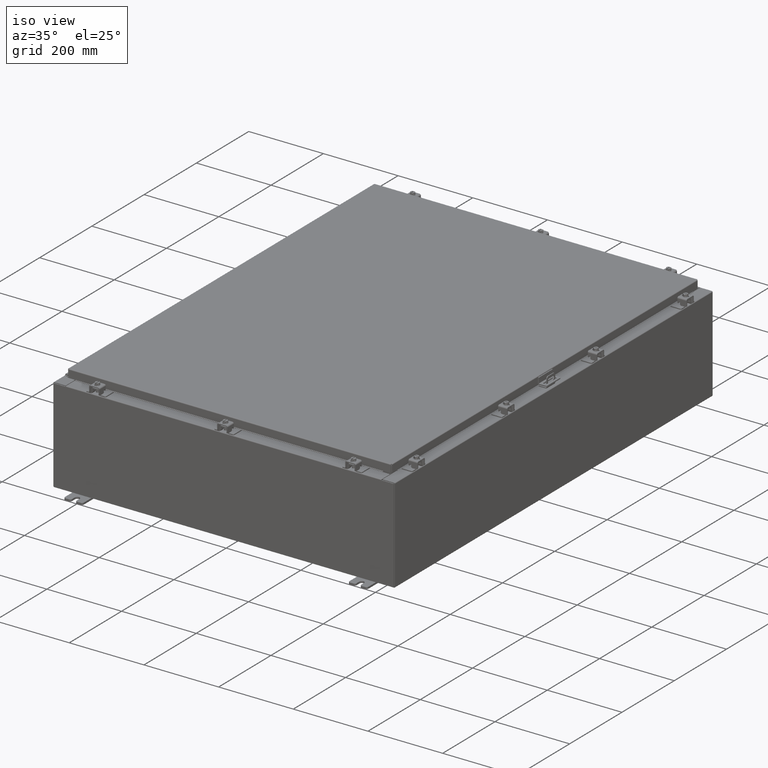
[diagram: clean part render]
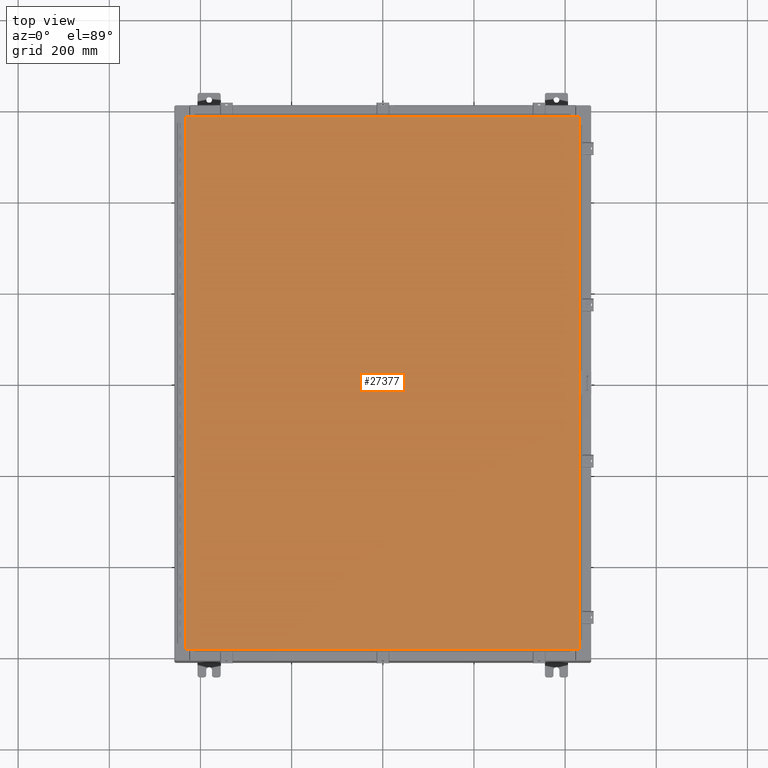
[diagram: tour spotlight — one face highlighted and labeled with its STEP entity id]
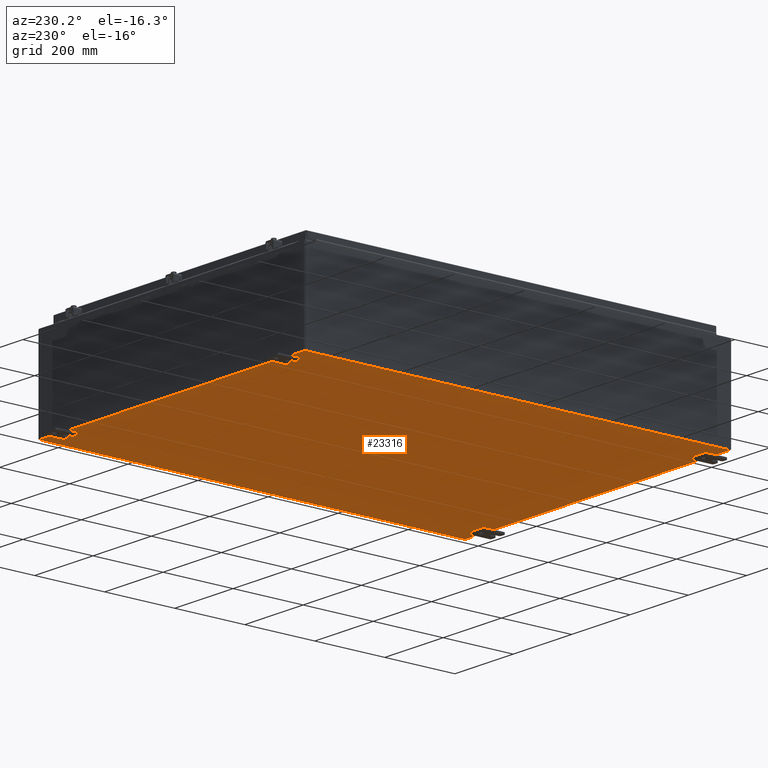
[diagram: tour spotlight — one face highlighted and labeled with its STEP entity id]
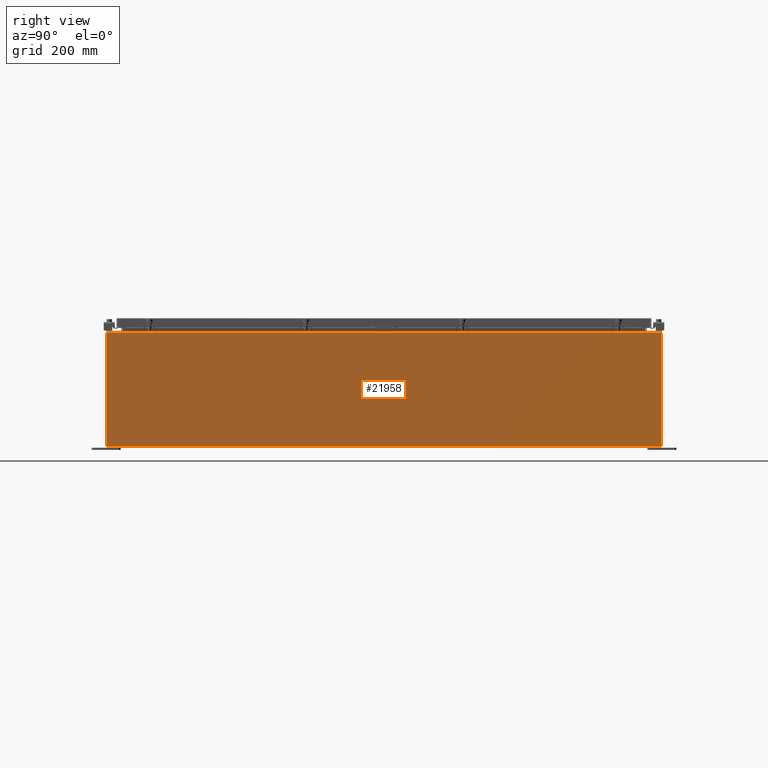
[diagram: tour spotlight — one face highlighted and labeled with its STEP entity id]
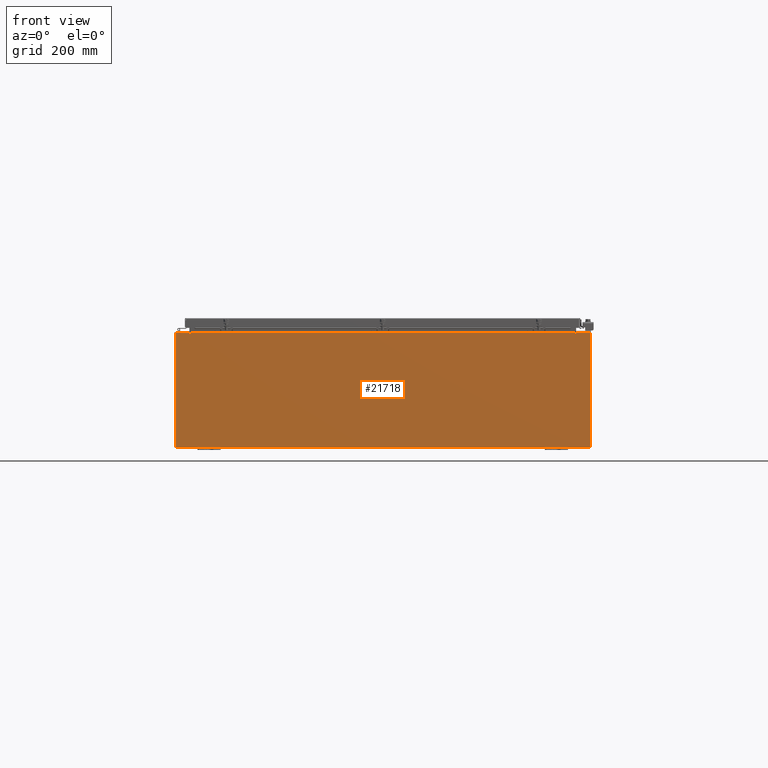
[diagram: tour spotlight — one face highlighted and labeled with its STEP entity id]
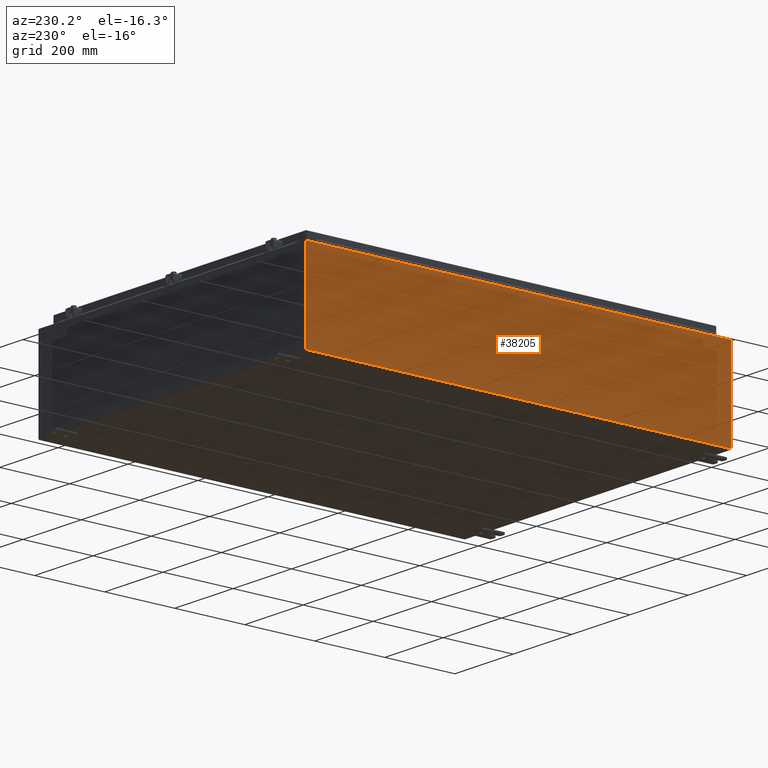
[diagram: tour spotlight — one face highlighted and labeled with its STEP entity id]
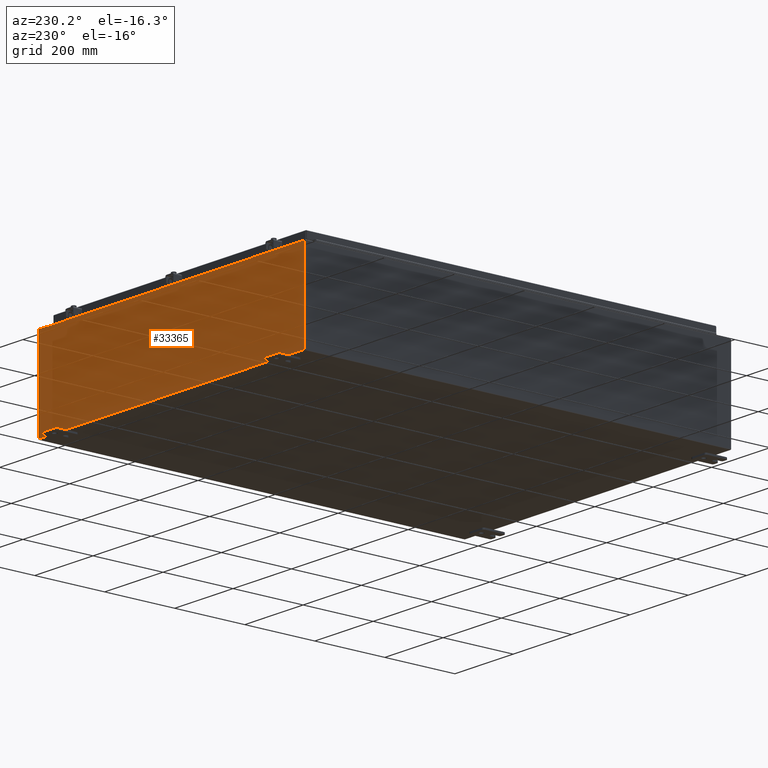
[diagram: tour spotlight — one face highlighted and labeled with its STEP entity id]
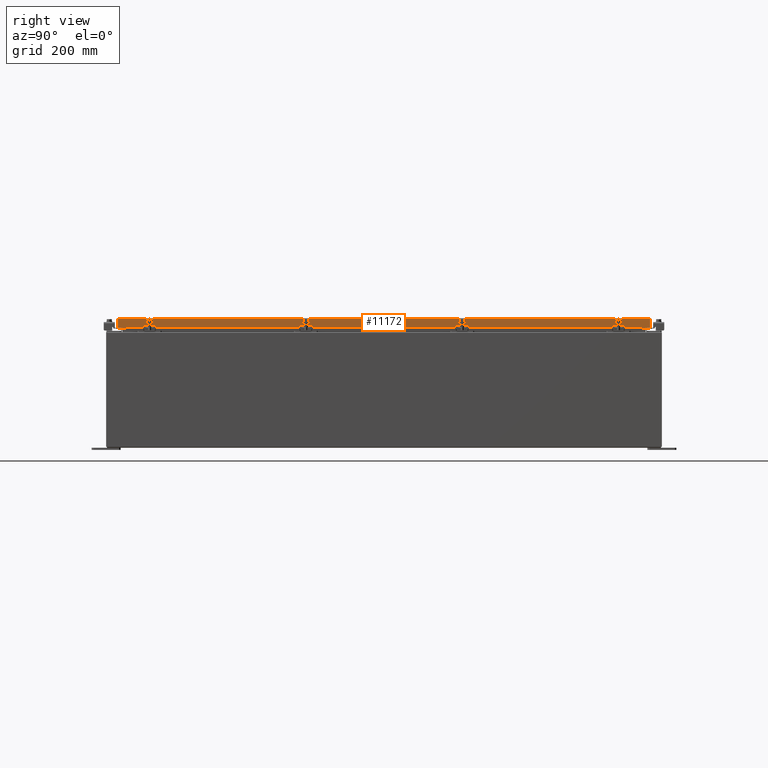
[diagram: tour spotlight — one face highlighted and labeled with its STEP entity id]
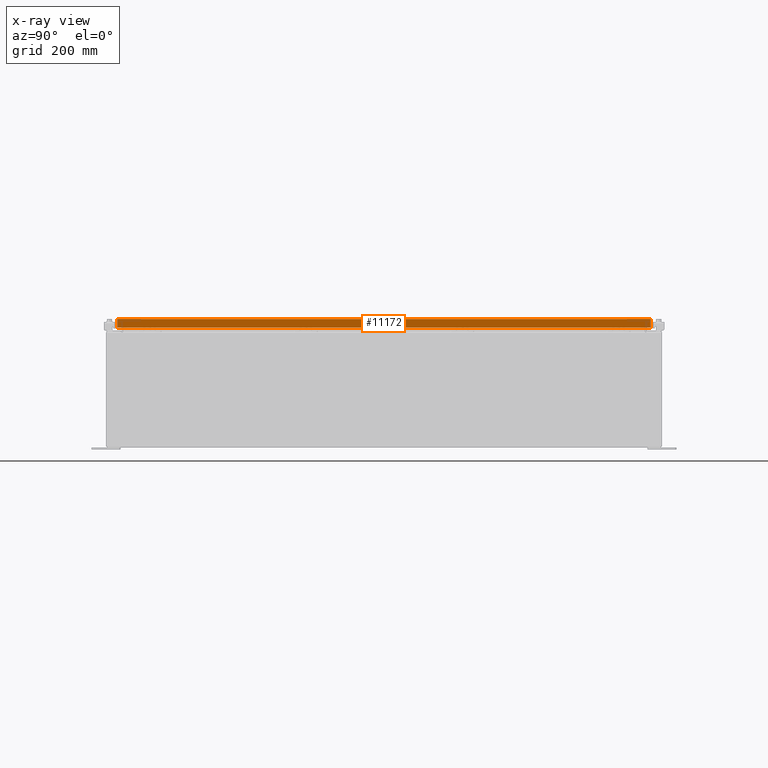
[diagram: x-ray of the same camera — body ghosted, this tour face saturated]
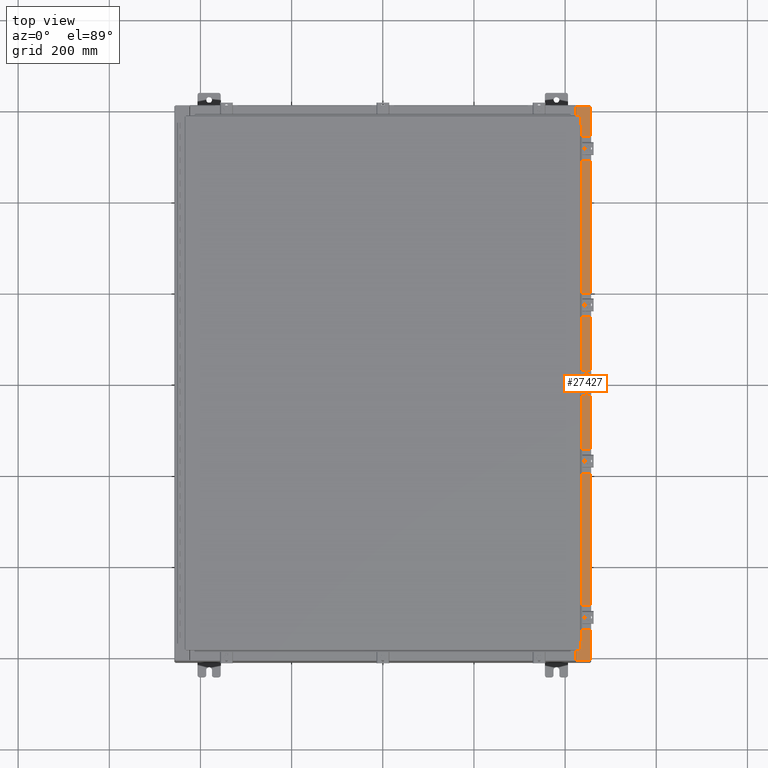
[diagram: tour spotlight — one face highlighted and labeled with its STEP entity id]
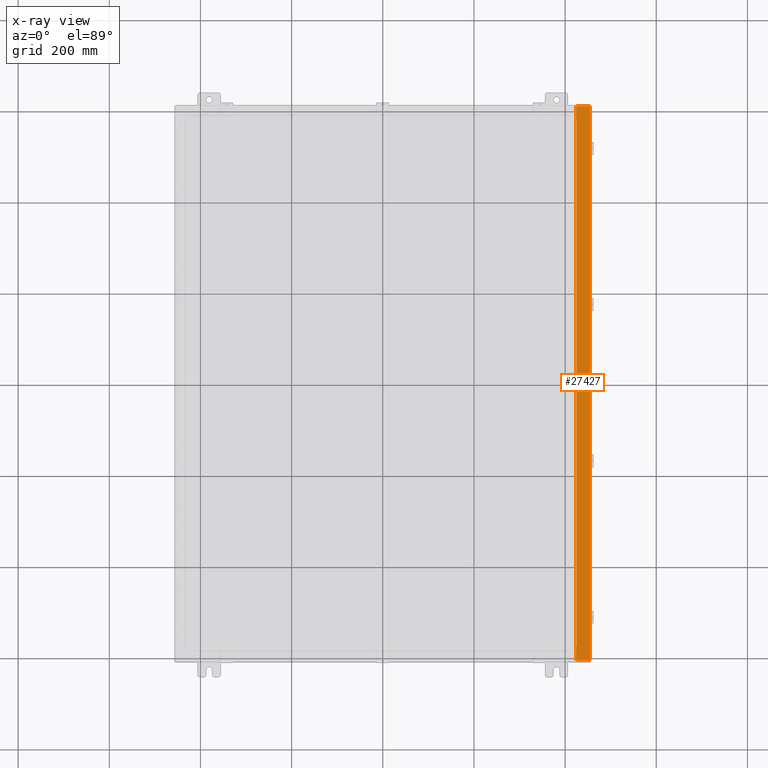
[diagram: x-ray of the same camera — body ghosted, this tour face saturated]
A machine part: a face-by-face anatomy tour. The part has 2999 B-rep faces; the first image is the clean iso view, then the 8 largest visible faces are spotlighted one at a time (largest first), each with its STEP entity span.

Face 1 — top view, entity #27377. In plain terms, the highlighted planar face has unit normal (0, 0, -1).
Definition (entity closure, byte-faithful):
#1571 = VERTEX_POINT ( 'NONE', #12408 ) ;
#4563 = EDGE_CURVE ( 'NONE', #1571, #13063, #6403, .T. ) ;
#6403 = LINE ( 'NONE', #44116, #49437 ) ;
#6444 = ORIENTED_EDGE ( 'NONE', *, *, #23008, .T. ) ;
#6914 = LINE ( 'NONE', #34058, #27788 ) ;
#8067 = PLANE ( 'NONE',  #45668 ) ;
#10344 = CARTESIAN_POINT ( 'NONE',  ( 16.99029999999999800, -23.00630000000000300, -2.048885995248197400E-016 ) ) ;
#11032 = VERTEX_POINT ( 'NONE', #20932 ) ;
#12120 = ORIENTED_EDGE ( 'NONE', *, *, #4563, .T. ) ;
#12408 = CARTESIAN_POINT ( 'NONE',  ( -16.99029999999999800, -23.00630000000000300, 1.946441695485787500E-015 ) ) ;
#13063 = VERTEX_POINT ( 'NONE', #36306 ) ;
#13487 = CARTESIAN_POINT ( 'NONE',  ( -16.99029999999998400, 23.00630000000001000, -1.297627796990525000E-015 ) ) ;
#16490 = DIRECTION ( 'NONE',  ( 0.0000000000000000000, 0.0000000000000000000, -1.000000000000000000 ) ) ;
#19186 = VECTOR ( 'NONE', #31167, 39.37007874015748100 ) ;
#20147 = EDGE_CURVE ( 'NONE', #11032, #43037, #6914, .T. ) ;
#20932 = CARTESIAN_POINT ( 'NONE',  ( 16.99029999999999800, 23.00630000000001000, 1.946441695485787500E-015 ) ) ;
#21774 = DIRECTION ( 'NONE',  ( -1.000000000000000000, -0.0000000000000000000, -0.0000000000000000000 ) ) ;
#23008 = EDGE_CURVE ( 'NONE', #43037, #1571, #25763, .T. ) ;
#23417 = EDGE_LOOP ( 'NONE', ( #12120, #36974, #45411, #6444 ) ) ;
#25763 = LINE ( 'NONE', #52099, #45366 ) ;
#27377 = ADVANCED_FACE ( 'NONE', ( #32662 ), #8067, .F. ) ;
#27788 = VECTOR ( 'NONE', #21774, 39.37007874015748100 ) ;
#28527 = DIRECTION ( 'NONE',  ( 1.000000000000000000, -0.0000000000000000000, -0.0000000000000000000 ) ) ;
#31167 = DIRECTION ( 'NONE',  ( 0.0000000000000000000, 1.000000000000000000, 0.0000000000000000000 ) ) ;
#32662 = FACE_OUTER_BOUND ( 'NONE', #23417, .T. ) ;
#32922 = LINE ( 'NONE', #10344, #19186 ) ;
#34058 = CARTESIAN_POINT ( 'NONE',  ( 16.99029999999999800, 23.00630000000001000, 1.946441695485787500E-015 ) ) ;
#35535 = DIRECTION ( 'NONE',  ( 0.0000000000000000000, -1.000000000000000000, 0.0000000000000000000 ) ) ;
#36306 = CARTESIAN_POINT ( 'NONE',  ( 16.99029999999999800, -23.00630000000000300, -2.048885995248197400E-016 ) ) ;
#36974 = ORIENTED_EDGE ( 'NONE', *, *, #43210, .T. ) ;
#41488 = CARTESIAN_POINT ( 'NONE',  ( 0.0000000000000000000, 0.0000000000000000000, 0.0000000000000000000 ) ) ;
#43037 = VERTEX_POINT ( 'NONE', #13487 ) ;
#43210 = EDGE_CURVE ( 'NONE', #13063, #11032, #32922, .T. ) ;
#44116 = CARTESIAN_POINT ( 'NONE',  ( -16.99029999999999800, -23.00630000000000300, 1.946441695485787500E-015 ) ) ;
#45366 = VECTOR ( 'NONE', #35535, 39.37007874015748100 ) ;
#45411 = ORIENTED_EDGE ( 'NONE', *, *, #20147, .T. ) ;
#45668 = AXIS2_PLACEMENT_3D ( 'NONE', #41488, #16490, #45675 ) ;
#45675 = DIRECTION ( 'NONE',  ( -1.000000000000000000, 0.0000000000000000000, -0.0000000000000000000 ) ) ;
#49437 = VECTOR ( 'NONE', #28527, 39.37007874015748100 ) ;
#52099 = CARTESIAN_POINT ( 'NONE',  ( -16.99029999999998400, 23.00630000000001000, -1.297627796990525000E-015 ) ) ;

Face 2 — auxiliary view, entity #23316. In plain terms, the highlighted planar face has unit normal (0, 0, -1).
Definition (entity closure, byte-faithful):
#625 = VERTEX_POINT ( 'NONE', #11568 ) ;
#1982 = CARTESIAN_POINT ( 'NONE',  ( 17.91229999999999500, -23.92530000000000000, -0.07470000000000000300 ) ) ;
#3315 = EDGE_LOOP ( 'NONE', ( #46484, #32377, #37030, #45587 ) ) ;
#4514 = EDGE_CURVE ( 'NONE', #625, #37616, #20095, .T. ) ;
#4762 = CARTESIAN_POINT ( 'NONE',  ( -18.00000000000000400, -23.92530000000000400, -0.07470000000000000300 ) ) ;
#6267 = DIRECTION ( 'NONE',  ( -1.000000000000000000, -0.0000000000000000000, -0.0000000000000000000 ) ) ;
#6784 = VECTOR ( 'NONE', #49997, 39.37007874015748100 ) ;
#8506 = CARTESIAN_POINT ( 'NONE',  ( -17.91230000000000500, 23.92529999999998900, -0.07470000000000000300 ) ) ;
#10044 = LINE ( 'NONE', #18849, #53116 ) ;
#11568 = CARTESIAN_POINT ( 'NONE',  ( -17.91230000000000500, -23.92529999999998600, -0.07469999999999994700 ) ) ;
#12044 = CARTESIAN_POINT ( 'NONE',  ( 17.91229999999999500, 23.92529999999998600, -0.07469999999999688000 ) ) ;
#14189 = EDGE_CURVE ( 'NONE', #42404, #33895, #10044, .T. ) ;
#14498 = EDGE_CURVE ( 'NONE', #625, #33895, #26357, .T. ) ;
#16598 = EDGE_CURVE ( 'NONE', #42404, #37616, #52860, .T. ) ;
#16736 = PLANE ( 'NONE',  #24092 ) ;
#17887 = CARTESIAN_POINT ( 'NONE',  ( 17.91229999999999500, 23.92529999999998900, -0.07469999999999688000 ) ) ;
#18849 = CARTESIAN_POINT ( 'NONE',  ( -18.00000000000000400, 23.92530000000000000, -0.07470000000000000300 ) ) ;
#20095 = LINE ( 'NONE', #4762, #31208 ) ;
#21151 = FACE_OUTER_BOUND ( 'NONE', #3315, .T. ) ;
#22335 = DIRECTION ( 'NONE',  ( 0.0000000000000000000, 0.0000000000000000000, -1.000000000000000000 ) ) ;
#23316 = ADVANCED_FACE ( 'NONE', ( #21151 ), #16736, .T. ) ;
#24092 = AXIS2_PLACEMENT_3D ( 'NONE', #47362, #22335, #51531 ) ;
#26254 = DIRECTION ( 'NONE',  ( -0.0000000000000000000, -1.000000000000000000, -8.208677865577646300E-017 ) ) ;
#26357 = LINE ( 'NONE', #29398, #6784 ) ;
#27683 = DIRECTION ( 'NONE',  ( 1.000000000000000000, 1.214154663850783700E-016, 0.0000000000000000000 ) ) ;
#29398 = CARTESIAN_POINT ( 'NONE',  ( -17.91230000000000500, -23.92529999999998900, -0.07469999999999994700 ) ) ;
#29411 = VECTOR ( 'NONE', #26254, 39.37007874015748100 ) ;
#31208 = VECTOR ( 'NONE', #27683, 39.37007874015748100 ) ;
#32377 = ORIENTED_EDGE ( 'NONE', *, *, #14498, .T. ) ;
#33895 = VERTEX_POINT ( 'NONE', #8506 ) ;
#37030 = ORIENTED_EDGE ( 'NONE', *, *, #14189, .F. ) ;
#37616 = VERTEX_POINT ( 'NONE', #1982 ) ;
#42404 = VERTEX_POINT ( 'NONE', #12044 ) ;
#45587 = ORIENTED_EDGE ( 'NONE', *, *, #16598, .T. ) ;
#46484 = ORIENTED_EDGE ( 'NONE', *, *, #4514, .F. ) ;
#47362 = CARTESIAN_POINT ( 'NONE',  ( 0.0000000000000000000, 0.0000000000000000000, -0.07470000000000000300 ) ) ;
#49997 = DIRECTION ( 'NONE',  ( -0.0000000000000000000, 1.000000000000000000, -0.0000000000000000000 ) ) ;
#51531 = DIRECTION ( 'NONE',  ( -1.000000000000000000, 0.0000000000000000000, -0.0000000000000000000 ) ) ;
#52860 = LINE ( 'NONE', #17887, #29411 ) ;
#53116 = VECTOR ( 'NONE', #6267, 39.37007874015748100 ) ;

Face 3 — right view, entity #21958. In plain terms, the highlighted planar face has unit normal (-1, 0, 0).
Definition (entity closure, byte-faithful):
#190 = LINE ( 'NONE', #46066, #44509 ) ;
#519 = ORIENTED_EDGE ( 'NONE', *, *, #23168, .T. ) ;
#1981 = VERTEX_POINT ( 'NONE', #39099 ) ;
#2511 = DIRECTION ( 'NONE',  ( -1.000000000000000000, 0.0000000000000000000, 3.523082860860887800E-015 ) ) ;
#3112 = CARTESIAN_POINT ( 'NONE',  ( 17.99999999999999600, -23.92529999999998900, -6.367630515150754200E-014 ) ) ;
#4295 = EDGE_CURVE ( 'NONE', #9180, #26957, #50144, .T. ) ;
#6339 = ORIENTED_EDGE ( 'NONE', *, *, #4295, .T. ) ;
#6831 = VECTOR ( 'NONE', #44827, 39.37007874015748100 ) ;
#7259 = VECTOR ( 'NONE', #17752, 39.37007874015748100 ) ;
#7461 = EDGE_CURVE ( 'NONE', #9180, #1981, #8551, .T. ) ;
#8551 = LINE ( 'NONE', #21731, #7259 ) ;
#9180 = VERTEX_POINT ( 'NONE', #12543 ) ;
#12543 = CARTESIAN_POINT ( 'NONE',  ( 17.99999999999999600, 23.92529999999998600, 0.01300000000000203200 ) ) ;
#16300 = VERTEX_POINT ( 'NONE', #36679 ) ;
#17752 = DIRECTION ( 'NONE',  ( -1.609096119163526300E-031, -1.000000000000000000, -4.567295697298285000E-017 ) ) ;
#18533 = EDGE_LOOP ( 'NONE', ( #24198, #519, #31330, #6339 ) ) ;
#21050 = DIRECTION ( 'NONE',  ( -0.0000000000000000000, -1.000000000000000000, -0.0000000000000000000 ) ) ;
#21731 = CARTESIAN_POINT ( 'NONE',  ( 17.99999999999999600, -23.92529999999998900, 0.01299999999999984700 ) ) ;
#21958 = ADVANCED_FACE ( 'NONE', ( #53251 ), #27234, .F. ) ;
#23168 = EDGE_CURVE ( 'NONE', #16300, #1981, #40139, .T. ) ;
#24198 = ORIENTED_EDGE ( 'NONE', *, *, #36172, .T. ) ;
#26957 = VERTEX_POINT ( 'NONE', #47151 ) ;
#27234 = PLANE ( 'NONE',  #47150 ) ;
#27306 = CARTESIAN_POINT ( 'NONE',  ( 17.99999999999999600, 23.92529999999998900, -6.367630515150754200E-014 ) ) ;
#31330 = ORIENTED_EDGE ( 'NONE', *, *, #7461, .F. ) ;
#31645 = DIRECTION ( 'NONE',  ( 3.523082860860887800E-015, 0.0000000000000000000, 1.000000000000000000 ) ) ;
#36172 = EDGE_CURVE ( 'NONE', #26957, #16300, #190, .T. ) ;
#36679 = CARTESIAN_POINT ( 'NONE',  ( 18.00000000000003200, -23.92529999999998900, 9.837600000000001900 ) ) ;
#39080 = VECTOR ( 'NONE', #49773, 39.37007874015748100 ) ;
#39099 = CARTESIAN_POINT ( 'NONE',  ( 17.99999999999999600, -23.92529999999998900, 0.01299999999999897400 ) ) ;
#40139 = LINE ( 'NONE', #3112, #6831 ) ;
#44509 = VECTOR ( 'NONE', #21050, 39.37007874015748100 ) ;
#44827 = DIRECTION ( 'NONE',  ( -3.523082860860888200E-015, 0.0000000000000000000, -1.000000000000000000 ) ) ;
#46066 = CARTESIAN_POINT ( 'NONE',  ( 18.00000000000003200, 23.92529999999998900, 9.837599999999994800 ) ) ;
#47150 = AXIS2_PLACEMENT_3D ( 'NONE', #48201, #2511, #31645 ) ;
#47151 = CARTESIAN_POINT ( 'NONE',  ( 18.00000000000003200, 23.92529999999998600, 9.837599999999994800 ) ) ;
#48201 = CARTESIAN_POINT ( 'NONE',  ( 17.99999999999999600, 0.0000000000000000000, -6.367630515150754200E-014 ) ) ;
#49773 = DIRECTION ( 'NONE',  ( 3.523082860860888200E-015, 0.0000000000000000000, 1.000000000000000000 ) ) ;
#50144 = LINE ( 'NONE', #27306, #39080 ) ;
#53251 = FACE_OUTER_BOUND ( 'NONE', #18533, .T. ) ;

Face 4 — front view, entity #21718. In plain terms, the highlighted planar face has unit normal (-0, 1, -0).
Definition (entity closure, byte-faithful):
#726 = ORIENTED_EDGE ( 'NONE', *, *, #22353, .T. ) ;
#1050 = CARTESIAN_POINT ( 'NONE',  ( -17.92530000000000000, 0.0000000000000000000, 4.925300000000000000 ) ) ;
#1108 = DIRECTION ( 'NONE',  ( -1.000000000000000000, -0.0000000000000000000, -0.0000000000000000000 ) ) ;
#1708 = AXIS2_PLACEMENT_3D ( 'NONE', #33906, #8862, #38082 ) ;
#2954 = CARTESIAN_POINT ( 'NONE',  ( 16.67455000000000700, 0.0000000000000000000, 4.925300000000000000 ) ) ;
#3467 = CARTESIAN_POINT ( 'NONE',  ( -16.67455000000000000, 0.0000000000000000000, 4.874950000000000100 ) ) ;
#3579 = LINE ( 'NONE', #9201, #25704 ) ;
#4328 = LINE ( 'NONE', #25824, #47363 ) ;
#4543 = ORIENTED_EDGE ( 'NONE', *, *, #15806, .F. ) ;
#4996 = ORIENTED_EDGE ( 'NONE', *, *, #52621, .T. ) ;
#5935 = VERTEX_POINT ( 'NONE', #43036 ) ;
#6960 = EDGE_CURVE ( 'NONE', #40974, #26000, #3579, .T. ) ;
#8862 = DIRECTION ( 'NONE',  ( -0.0000000000000000000, 1.000000000000000000, -0.0000000000000000000 ) ) ;
#9028 = VERTEX_POINT ( 'NONE', #2954 ) ;
#9045 = DIRECTION ( 'NONE',  ( 0.0000000000000000000, 0.0000000000000000000, -1.000000000000000000 ) ) ;
#9201 = CARTESIAN_POINT ( 'NONE',  ( -17.92530000000000000, 0.0000000000000000000, -4.925300000000000000 ) ) ;
#9827 = EDGE_CURVE ( 'NONE', #9028, #38459, #28620, .T. ) ;
#11556 = EDGE_CURVE ( 'NONE', #5935, #35165, #4328, .T. ) ;
#11714 = CARTESIAN_POINT ( 'NONE',  ( -17.92530000000000000, 0.0000000000000000000, 4.925300000000000000 ) ) ;
#12749 = EDGE_CURVE ( 'NONE', #38459, #40974, #38143, .T. ) ;
#13236 = PLANE ( 'NONE',  #45418 ) ;
#13720 = CARTESIAN_POINT ( 'NONE',  ( 16.67454999999957700, -0.0000000000000000000, -1.447541957108341500E-012 ) ) ;
#13965 = CARTESIAN_POINT ( 'NONE',  ( -16.67455000000000000, 0.0000000000000000000, 4.925300000000000000 ) ) ;
#15635 = EDGE_CURVE ( 'NONE', #22104, #52345, #51655, .T. ) ;
#15668 = CARTESIAN_POINT ( 'NONE',  ( 16.65587500000000200, 0.0000000000000000000, 4.874950000000000100 ) ) ;
#15806 = EDGE_CURVE ( 'NONE', #33773, #52345, #34090, .T. ) ;
#16222 = VECTOR ( 'NONE', #17929, 39.37007874015748100 ) ;
#16986 = CARTESIAN_POINT ( 'NONE',  ( 17.92530000000000000, 0.0000000000000000000, 4.925300000000000000 ) ) ;
#17183 = CARTESIAN_POINT ( 'NONE',  ( 17.92530000000000000, 0.0000000000000000000, -4.925300000000000000 ) ) ;
#17346 = CARTESIAN_POINT ( 'NONE',  ( -16.63720000000000400, -0.0000000000000000000, 4.874950000000000100 ) ) ;
#17365 = CARTESIAN_POINT ( 'NONE',  ( -16.63720000000000400, -7.171100983368691200E-016, 4.912300000000000100 ) ) ;
#17737 = DIRECTION ( 'NONE',  ( -0.0000000000000000000, -0.0000000000000000000, 1.000000000000000000 ) ) ;
#17820 = EDGE_CURVE ( 'NONE', #9028, #21754, #27287, .T. ) ;
#17832 = EDGE_CURVE ( 'NONE', #37904, #35851, #50784, .T. ) ;
#17921 = ORIENTED_EDGE ( 'NONE', *, *, #17820, .F. ) ;
#17929 = DIRECTION ( 'NONE',  ( -8.681145560800009800E-014, 0.0000000000000000000, -1.000000000000000000 ) ) ;
#18388 = VECTOR ( 'NONE', #31657, 39.37007874015748100 ) ;
#19552 = LINE ( 'NONE', #17365, #30653 ) ;
#19844 = DIRECTION ( 'NONE',  ( 0.0000000000000000000, 0.0000000000000000000, -1.000000000000000000 ) ) ;
#21153 = DIRECTION ( 'NONE',  ( 0.0000000000000000000, 0.0000000000000000000, -1.000000000000000000 ) ) ;
#21317 = ORIENTED_EDGE ( 'NONE', *, *, #17832, .F. ) ;
#21426 = CARTESIAN_POINT ( 'NONE',  ( 0.0000000000000000000, 0.0000000000000000000, 0.0000000000000000000 ) ) ;
#21593 = DIRECTION ( 'NONE',  ( 0.0000000000000000000, -0.0000000000000000000, -1.000000000000000000 ) ) ;
#21718 = ADVANCED_FACE ( 'NONE', ( #52637 ), #13236, .F. ) ;
#21754 = VERTEX_POINT ( 'NONE', #46795 ) ;
#22072 = DIRECTION ( 'NONE',  ( 0.0000000000000000000, 0.0000000000000000000, 1.000000000000000000 ) ) ;
#22104 = VERTEX_POINT ( 'NONE', #11714 ) ;
#22353 = EDGE_CURVE ( 'NONE', #26000, #22104, #48660, .T. ) ;
#25704 = VECTOR ( 'NONE', #1108, 39.37007874015748100 ) ;
#25824 = CARTESIAN_POINT ( 'NONE',  ( -16.63720000000000400, -0.0000000000000000000, 0.0000000000000000000 ) ) ;
#26000 = VERTEX_POINT ( 'NONE', #40181 ) ;
#27023 = ORIENTED_EDGE ( 'NONE', *, *, #11556, .F. ) ;
#27287 = LINE ( 'NONE', #13720, #16222 ) ;
#28620 = LINE ( 'NONE', #29662, #48174 ) ;
#28866 = CARTESIAN_POINT ( 'NONE',  ( 16.63720000000000400, 0.0000000000000000000, 4.874950000000000100 ) ) ;
#29662 = CARTESIAN_POINT ( 'NONE',  ( -17.92530000000000000, 0.0000000000000000000, 4.925300000000000000 ) ) ;
#30653 = VECTOR ( 'NONE', #42376, 39.37007874015748100 ) ;
#31323 = CARTESIAN_POINT ( 'NONE',  ( 16.63720000000000400, 0.0000000000000000000, 4.912300000000000100 ) ) ;
#31657 = DIRECTION ( 'NONE',  ( 1.000000000000000000, 0.0000000000000000000, 0.0000000000000000000 ) ) ;
#33773 = VERTEX_POINT ( 'NONE', #3467 ) ;
#33888 = DIRECTION ( 'NONE',  ( 1.000000000000000000, 0.0000000000000000000, 0.0000000000000000000 ) ) ;
#33906 = CARTESIAN_POINT ( 'NONE',  ( -16.65587500000000200, 0.0000000000000000000, 4.874950000000000100 ) ) ;
#34065 = DIRECTION ( 'NONE',  ( 0.0000000000000000000, -1.000000000000000000, 0.0000000000000000000 ) ) ;
#34090 = LINE ( 'NONE', #53634, #53565 ) ;
#35165 = VERTEX_POINT ( 'NONE', #17346 ) ;
#35625 = ORIENTED_EDGE ( 'NONE', *, *, #12749, .T. ) ;
#35851 = VERTEX_POINT ( 'NONE', #31323 ) ;
#36307 = VECTOR ( 'NONE', #17737, 39.37007874015748100 ) ;
#36370 = CIRCLE ( 'NONE', #1708, 0.01867499999999949400 ) ;
#36795 = VECTOR ( 'NONE', #21153, 39.37007874015748100 ) ;
#37079 = AXIS2_PLACEMENT_3D ( 'NONE', #15668, #44844, #19844 ) ;
#37105 = DIRECTION ( 'NONE',  ( 0.0000000000000000000, 0.0000000000000000000, 1.000000000000000000 ) ) ;
#37904 = VERTEX_POINT ( 'NONE', #28866 ) ;
#38082 = DIRECTION ( 'NONE',  ( 0.0000000000000000000, 0.0000000000000000000, -1.000000000000000000 ) ) ;
#38143 = LINE ( 'NONE', #16986, #36795 ) ;
#38148 = ORIENTED_EDGE ( 'NONE', *, *, #6960, .T. ) ;
#38435 = VECTOR ( 'NONE', #22072, 39.37007874015748100 ) ;
#38459 = VERTEX_POINT ( 'NONE', #46150 ) ;
#39868 = CARTESIAN_POINT ( 'NONE',  ( -17.92530000000000000, 0.0000000000000000000, 4.925300000000000000 ) ) ;
#40181 = CARTESIAN_POINT ( 'NONE',  ( -17.92530000000000000, 0.0000000000000000000, -4.925300000000000000 ) ) ;
#40418 = ORIENTED_EDGE ( 'NONE', *, *, #48810, .F. ) ;
#40974 = VERTEX_POINT ( 'NONE', #17183 ) ;
#41402 = EDGE_CURVE ( 'NONE', #35165, #33773, #36370, .T. ) ;
#42376 = DIRECTION ( 'NONE',  ( 1.000000000000000000, 0.0000000000000000000, 0.0000000000000000000 ) ) ;
#42605 = ORIENTED_EDGE ( 'NONE', *, *, #15635, .T. ) ;
#42843 = EDGE_LOOP ( 'NONE', ( #4543, #52967, #27023, #4996, #21317, #40418, #17921, #53974, #35625, #38148, #726, #42605 ) ) ;
#43036 = CARTESIAN_POINT ( 'NONE',  ( -16.63720000000000400, -7.171100983368691200E-016, 4.912300000000000100 ) ) ;
#44844 = DIRECTION ( 'NONE',  ( -0.0000000000000000000, 1.000000000000000000, -0.0000000000000000000 ) ) ;
#45418 = AXIS2_PLACEMENT_3D ( 'NONE', #21426, #34065, #21593 ) ;
#46150 = CARTESIAN_POINT ( 'NONE',  ( 17.92530000000000000, 0.0000000000000000000, 4.925300000000000000 ) ) ;
#46795 = CARTESIAN_POINT ( 'NONE',  ( 16.67455000000000000, 0.0000000000000000000, 4.874950000000000100 ) ) ;
#47103 = CARTESIAN_POINT ( 'NONE',  ( 16.63720000000000400, 0.0000000000000000000, 0.0000000000000000000 ) ) ;
#47363 = VECTOR ( 'NONE', #9045, 39.37007874015748100 ) ;
#48174 = VECTOR ( 'NONE', #33888, 39.37007874015748100 ) ;
#48660 = LINE ( 'NONE', #1050, #36307 ) ;
#48810 = EDGE_CURVE ( 'NONE', #21754, #37904, #53208, .T. ) ;
#50784 = LINE ( 'NONE', #47103, #38435 ) ;
#51655 = LINE ( 'NONE', #39868, #18388 ) ;
#52345 = VERTEX_POINT ( 'NONE', #13965 ) ;
#52621 = EDGE_CURVE ( 'NONE', #5935, #35851, #19552, .T. ) ;
#52637 = FACE_OUTER_BOUND ( 'NONE', #42843, .T. ) ;
#52967 = ORIENTED_EDGE ( 'NONE', *, *, #41402, .F. ) ;
#53208 = CIRCLE ( 'NONE', #37079, 0.01867499999999949400 ) ;
#53565 = VECTOR ( 'NONE', #37105, 39.37007874015748100 ) ;
#53634 = CARTESIAN_POINT ( 'NONE',  ( -16.67455000000000000, -0.0000000000000000000, 0.0000000000000000000 ) ) ;
#53974 = ORIENTED_EDGE ( 'NONE', *, *, #9827, .T. ) ;

Face 5 — auxiliary view, entity #38205. In plain terms, the highlighted planar face has unit normal (1, 0, 0).
Definition (entity closure, byte-faithful):
#1679 = CARTESIAN_POINT ( 'NONE',  ( -18.00000000000000400, -23.92529999999998600, 0.01299999999999984700 ) ) ;
#2644 = CARTESIAN_POINT ( 'NONE',  ( -18.00000000000000400, 0.0000000000000000000, -6.367630515150756800E-014 ) ) ;
#3485 = CARTESIAN_POINT ( 'NONE',  ( -18.00000000000000400, 23.92529999999998900, 0.01299999999999984700 ) ) ;
#8141 = VECTOR ( 'NONE', #38955, 39.37007874015748100 ) ;
#9722 = CARTESIAN_POINT ( 'NONE',  ( -18.00000000000003900, -23.92529999999998900, 9.837600000000000100 ) ) ;
#13026 = DIRECTION ( 'NONE',  ( -3.523082860860888200E-015, 0.0000000000000000000, 1.000000000000000000 ) ) ;
#14966 = VECTOR ( 'NONE', #13026, 39.37007874015748100 ) ;
#17019 = AXIS2_PLACEMENT_3D ( 'NONE', #2644, #44363, #19352 ) ;
#19352 = DIRECTION ( 'NONE',  ( 3.523082860860887800E-015, 0.0000000000000000000, -1.000000000000000000 ) ) ;
#21391 = CARTESIAN_POINT ( 'NONE',  ( -18.00000000000000400, -23.92529999999999600, -6.367630515150756800E-014 ) ) ;
#23833 = ORIENTED_EDGE ( 'NONE', *, *, #40447, .T. ) ;
#25556 = LINE ( 'NONE', #52713, #38000 ) ;
#27556 = PLANE ( 'NONE',  #17019 ) ;
#27578 = CARTESIAN_POINT ( 'NONE',  ( -18.00000000000003900, -23.92529999999998600, 9.837600000000000100 ) ) ;
#29088 = EDGE_LOOP ( 'NONE', ( #34695, #50080, #48759, #23833 ) ) ;
#31967 = DIRECTION ( 'NONE',  ( 3.523082860860888200E-015, 0.0000000000000000000, -1.000000000000000000 ) ) ;
#34695 = ORIENTED_EDGE ( 'NONE', *, *, #45473, .T. ) ;
#36809 = DIRECTION ( 'NONE',  ( -0.0000000000000000000, 1.000000000000000000, -0.0000000000000000000 ) ) ;
#37168 = LINE ( 'NONE', #21391, #14966 ) ;
#38000 = VECTOR ( 'NONE', #31967, 39.37007874015748100 ) ;
#38205 = ADVANCED_FACE ( 'NONE', ( #43299 ), #27556, .F. ) ;
#38955 = DIRECTION ( 'NONE',  ( 0.0000000000000000000, 1.000000000000000000, 0.0000000000000000000 ) ) ;
#40447 = EDGE_CURVE ( 'NONE', #43638, #48114, #37168, .T. ) ;
#41661 = VERTEX_POINT ( 'NONE', #52208 ) ;
#42198 = LINE ( 'NONE', #3485, #51911 ) ;
#43299 = FACE_OUTER_BOUND ( 'NONE', #29088, .T. ) ;
#43638 = VERTEX_POINT ( 'NONE', #1679 ) ;
#43795 = CARTESIAN_POINT ( 'NONE',  ( -18.00000000000000400, 23.92529999999998900, 0.01299999999999984300 ) ) ;
#44363 = DIRECTION ( 'NONE',  ( 1.000000000000000000, 0.0000000000000000000, 3.523082860860887800E-015 ) ) ;
#44453 = VERTEX_POINT ( 'NONE', #43795 ) ;
#45473 = EDGE_CURVE ( 'NONE', #48114, #41661, #51200, .T. ) ;
#48114 = VERTEX_POINT ( 'NONE', #27578 ) ;
#48759 = ORIENTED_EDGE ( 'NONE', *, *, #48857, .F. ) ;
#48857 = EDGE_CURVE ( 'NONE', #43638, #44453, #42198, .T. ) ;
#50080 = ORIENTED_EDGE ( 'NONE', *, *, #51344, .T. ) ;
#51200 = LINE ( 'NONE', #9722, #8141 ) ;
#51344 = EDGE_CURVE ( 'NONE', #41661, #44453, #25556, .T. ) ;
#51911 = VECTOR ( 'NONE', #36809, 39.37007874015748100 ) ;
#52208 = CARTESIAN_POINT ( 'NONE',  ( -18.00000000000003900, 23.92529999999998900, 9.837600000000000100 ) ) ;
#52713 = CARTESIAN_POINT ( 'NONE',  ( -18.00000000000000400, 23.92529999999998900, -6.367630515150756800E-014 ) ) ;

Face 6 — auxiliary view, entity #33365. In plain terms, the highlighted planar face has unit normal (0, -1, 0).
Definition (entity closure, byte-faithful):
#334 = EDGE_LOOP ( 'NONE', ( #39303, #12983, #44401, #6282, #25221, #32941, #7287, #30980, #37474, #6864, #3466, #2749 ) ) ;
#590 = CARTESIAN_POINT ( 'NONE',  ( -16.63720000000000400, -0.0000000000000000000, 4.874950000000000100 ) ) ;
#808 = VECTOR ( 'NONE', #51937, 39.37007874015748100 ) ;
#1850 = LINE ( 'NONE', #46540, #33782 ) ;
#1888 = VERTEX_POINT ( 'NONE', #18831 ) ;
#2680 = CIRCLE ( 'NONE', #14755, 0.01867499999999949400 ) ;
#2749 = ORIENTED_EDGE ( 'NONE', *, *, #22557, .T. ) ;
#3466 = ORIENTED_EDGE ( 'NONE', *, *, #26412, .T. ) ;
#3656 = DIRECTION ( 'NONE',  ( 0.0000000000000000000, 0.0000000000000000000, -1.000000000000000000 ) ) ;
#4951 = DIRECTION ( 'NONE',  ( 0.0000000000000000000, -0.0000000000000000000, -1.000000000000000000 ) ) ;
#5199 = CARTESIAN_POINT ( 'NONE',  ( -16.63720000000000400, -7.171100983368691200E-016, 4.912300000000000100 ) ) ;
#5294 = CARTESIAN_POINT ( 'NONE',  ( -17.92530000000000000, 0.0000000000000000000, 4.925300000000000000 ) ) ;
#6282 = ORIENTED_EDGE ( 'NONE', *, *, #29627, .T. ) ;
#6864 = ORIENTED_EDGE ( 'NONE', *, *, #14366, .T. ) ;
#7287 = ORIENTED_EDGE ( 'NONE', *, *, #13387, .F. ) ;
#8017 = AXIS2_PLACEMENT_3D ( 'NONE', #46510, #29928, #4951 ) ;
#8991 = EDGE_CURVE ( 'NONE', #9274, #53124, #2680, .T. ) ;
#9144 = DIRECTION ( 'NONE',  ( 1.000000000000000000, 0.0000000000000000000, 0.0000000000000000000 ) ) ;
#9274 = VERTEX_POINT ( 'NONE', #590 ) ;
#10749 = CARTESIAN_POINT ( 'NONE',  ( -17.92530000000000000, 0.0000000000000000000, 4.925300000000000000 ) ) ;
#11084 = CARTESIAN_POINT ( 'NONE',  ( -16.65587500000000200, 0.0000000000000000000, 4.874950000000000100 ) ) ;
#11967 = FACE_OUTER_BOUND ( 'NONE', #334, .T. ) ;
#12001 = VECTOR ( 'NONE', #49246, 39.37007874015748100 ) ;
#12803 = CARTESIAN_POINT ( 'NONE',  ( 17.92530000000000000, 0.0000000000000000000, 4.925300000000000000 ) ) ;
#12983 = ORIENTED_EDGE ( 'NONE', *, *, #8991, .F. ) ;
#13043 = CARTESIAN_POINT ( 'NONE',  ( -17.92530000000000000, 0.0000000000000000000, -4.925300000000000000 ) ) ;
#13387 = EDGE_CURVE ( 'NONE', #13510, #52732, #19099, .T. ) ;
#13510 = VERTEX_POINT ( 'NONE', #39006 ) ;
#13959 = VERTEX_POINT ( 'NONE', #13043 ) ;
#14366 = EDGE_CURVE ( 'NONE', #1888, #13959, #34247, .T. ) ;
#14755 = AXIS2_PLACEMENT_3D ( 'NONE', #11084, #40301, #15310 ) ;
#15059 = VECTOR ( 'NONE', #42867, 39.37007874015748100 ) ;
#15310 = DIRECTION ( 'NONE',  ( 0.0000000000000000000, 0.0000000000000000000, -1.000000000000000000 ) ) ;
#16528 = CARTESIAN_POINT ( 'NONE',  ( 16.65587500000000200, 0.0000000000000000000, 4.874950000000000100 ) ) ;
#17339 = PLANE ( 'NONE',  #8017 ) ;
#18730 = EDGE_CURVE ( 'NONE', #33857, #29923, #19461, .T. ) ;
#18831 = CARTESIAN_POINT ( 'NONE',  ( 17.92530000000000000, 0.0000000000000000000, -4.925300000000000000 ) ) ;
#19099 = LINE ( 'NONE', #50658, #38705 ) ;
#19328 = CARTESIAN_POINT ( 'NONE',  ( 16.63720000000000400, 0.0000000000000000000, 4.912300000000000100 ) ) ;
#19461 = LINE ( 'NONE', #52372, #51420 ) ;
#19573 = VECTOR ( 'NONE', #3656, 39.37007874015748100 ) ;
#20688 = DIRECTION ( 'NONE',  ( 0.0000000000000000000, 0.0000000000000000000, -1.000000000000000000 ) ) ;
#21639 = DIRECTION ( 'NONE',  ( -8.681145560800009800E-014, 0.0000000000000000000, -1.000000000000000000 ) ) ;
#22119 = VECTOR ( 'NONE', #37820, 39.37007874015748100 ) ;
#22557 = EDGE_CURVE ( 'NONE', #38510, #26755, #46710, .T. ) ;
#23175 = DIRECTION ( 'NONE',  ( 0.0000000000000000000, 0.0000000000000000000, 1.000000000000000000 ) ) ;
#24477 = VECTOR ( 'NONE', #40158, 39.37007874015748100 ) ;
#25221 = ORIENTED_EDGE ( 'NONE', *, *, #18730, .F. ) ;
#26150 = LINE ( 'NONE', #5294, #15059 ) ;
#26412 = EDGE_CURVE ( 'NONE', #13959, #38510, #26150, .T. ) ;
#26755 = VERTEX_POINT ( 'NONE', #28388 ) ;
#27065 = CARTESIAN_POINT ( 'NONE',  ( 17.92530000000000000, 0.0000000000000000000, 4.925300000000000000 ) ) ;
#27106 = VERTEX_POINT ( 'NONE', #27065 ) ;
#27263 = VECTOR ( 'NONE', #37993, 39.37007874015748100 ) ;
#27678 = EDGE_CURVE ( 'NONE', #47895, #9274, #30667, .T. ) ;
#28388 = CARTESIAN_POINT ( 'NONE',  ( -16.67455000000000000, 0.0000000000000000000, 4.925300000000000000 ) ) ;
#28481 = CARTESIAN_POINT ( 'NONE',  ( -17.92530000000000000, 0.0000000000000000000, -4.925300000000000000 ) ) ;
#29627 = EDGE_CURVE ( 'NONE', #47895, #29923, #38403, .T. ) ;
#29923 = VERTEX_POINT ( 'NONE', #19328 ) ;
#29928 = DIRECTION ( 'NONE',  ( 0.0000000000000000000, -1.000000000000000000, 0.0000000000000000000 ) ) ;
#30667 = LINE ( 'NONE', #41025, #19573 ) ;
#30980 = ORIENTED_EDGE ( 'NONE', *, *, #44268, .T. ) ;
#32941 = ORIENTED_EDGE ( 'NONE', *, *, #47695, .F. ) ;
#33194 = CARTESIAN_POINT ( 'NONE',  ( -16.67455000000000000, 0.0000000000000000000, 4.874950000000000100 ) ) ;
#33292 = LINE ( 'NONE', #12803, #22119 ) ;
#33358 = CARTESIAN_POINT ( 'NONE',  ( 16.63720000000000400, 0.0000000000000000000, 4.874950000000000100 ) ) ;
#33365 = ADVANCED_FACE ( 'NONE', ( #11967 ), #17339, .F. ) ;
#33782 = VECTOR ( 'NONE', #9144, 39.37007874015748100 ) ;
#33857 = VERTEX_POINT ( 'NONE', #33358 ) ;
#34247 = LINE ( 'NONE', #28481, #12001 ) ;
#35038 = CIRCLE ( 'NONE', #41243, 0.01867499999999949400 ) ;
#37474 = ORIENTED_EDGE ( 'NONE', *, *, #52591, .T. ) ;
#37820 = DIRECTION ( 'NONE',  ( 0.0000000000000000000, 0.0000000000000000000, -1.000000000000000000 ) ) ;
#37993 = DIRECTION ( 'NONE',  ( 1.000000000000000000, 0.0000000000000000000, 0.0000000000000000000 ) ) ;
#38403 = LINE ( 'NONE', #46190, #27263 ) ;
#38510 = VERTEX_POINT ( 'NONE', #51327 ) ;
#38705 = VECTOR ( 'NONE', #21639, 39.37007874015748100 ) ;
#39006 = CARTESIAN_POINT ( 'NONE',  ( 16.67455000000000700, 0.0000000000000000000, 4.925300000000000000 ) ) ;
#39303 = ORIENTED_EDGE ( 'NONE', *, *, #51855, .F. ) ;
#40158 = DIRECTION ( 'NONE',  ( 1.000000000000000000, 0.0000000000000000000, 0.0000000000000000000 ) ) ;
#40301 = DIRECTION ( 'NONE',  ( -0.0000000000000000000, 1.000000000000000000, -0.0000000000000000000 ) ) ;
#41025 = CARTESIAN_POINT ( 'NONE',  ( -16.63720000000000400, -0.0000000000000000000, 0.0000000000000000000 ) ) ;
#41243 = AXIS2_PLACEMENT_3D ( 'NONE', #16528, #45706, #20688 ) ;
#42867 = DIRECTION ( 'NONE',  ( -0.0000000000000000000, -0.0000000000000000000, 1.000000000000000000 ) ) ;
#44268 = EDGE_CURVE ( 'NONE', #13510, #27106, #1850, .T. ) ;
#44401 = ORIENTED_EDGE ( 'NONE', *, *, #27678, .F. ) ;
#45102 = LINE ( 'NONE', #47734, #808 ) ;
#45706 = DIRECTION ( 'NONE',  ( -0.0000000000000000000, 1.000000000000000000, -0.0000000000000000000 ) ) ;
#46190 = CARTESIAN_POINT ( 'NONE',  ( -16.63720000000000400, -7.171100983368691200E-016, 4.912300000000000100 ) ) ;
#46510 = CARTESIAN_POINT ( 'NONE',  ( 0.0000000000000000000, 0.0000000000000000000, 0.0000000000000000000 ) ) ;
#46540 = CARTESIAN_POINT ( 'NONE',  ( -17.92530000000000000, 0.0000000000000000000, 4.925300000000000000 ) ) ;
#46710 = LINE ( 'NONE', #10749, #24477 ) ;
#47695 = EDGE_CURVE ( 'NONE', #52732, #33857, #35038, .T. ) ;
#47734 = CARTESIAN_POINT ( 'NONE',  ( -16.67455000000000000, -0.0000000000000000000, 0.0000000000000000000 ) ) ;
#47895 = VERTEX_POINT ( 'NONE', #5199 ) ;
#49246 = DIRECTION ( 'NONE',  ( -1.000000000000000000, -0.0000000000000000000, -0.0000000000000000000 ) ) ;
#50658 = CARTESIAN_POINT ( 'NONE',  ( 16.67454999999957700, -0.0000000000000000000, -1.447541957108341500E-012 ) ) ;
#51327 = CARTESIAN_POINT ( 'NONE',  ( -17.92530000000000000, 0.0000000000000000000, 4.925300000000000000 ) ) ;
#51420 = VECTOR ( 'NONE', #23175, 39.37007874015748100 ) ;
#51424 = CARTESIAN_POINT ( 'NONE',  ( 16.67455000000000000, 0.0000000000000000000, 4.874950000000000100 ) ) ;
#51855 = EDGE_CURVE ( 'NONE', #53124, #26755, #45102, .T. ) ;
#51937 = DIRECTION ( 'NONE',  ( 0.0000000000000000000, 0.0000000000000000000, 1.000000000000000000 ) ) ;
#52372 = CARTESIAN_POINT ( 'NONE',  ( 16.63720000000000400, 0.0000000000000000000, 0.0000000000000000000 ) ) ;
#52591 = EDGE_CURVE ( 'NONE', #27106, #1888, #33292, .T. ) ;
#52732 = VERTEX_POINT ( 'NONE', #51424 ) ;
#53124 = VERTEX_POINT ( 'NONE', #33194 ) ;

Face 7 — right view, entity #11172. An x-ray twin of the same camera follows (body ghosted, this face saturated) — the face is partly hidden behind the body. In plain terms, the highlighted planar face has unit normal (1, 0, 0).
Definition (entity closure, byte-faithful):
#650 = CARTESIAN_POINT ( 'NONE',  ( 17.07799999999999600, 22.25515786437628000, -0.8500000000000020900 ) ) ;
#2401 = CARTESIAN_POINT ( 'NONE',  ( 17.07799999999999900, -23.00515786437626900, -0.07469999999999978000 ) ) ;
#4246 = LINE ( 'NONE', #11970, #47283 ) ;
#6524 = VECTOR ( 'NONE', #11442, 39.37007874015748100 ) ;
#6535 = CARTESIAN_POINT ( 'NONE',  ( 17.07799999999999900, 0.0000000000000000000, 4.840166239667794100E-014 ) ) ;
#6719 = PLANE ( 'NONE',  #13794 ) ;
#7900 = ORIENTED_EDGE ( 'NONE', *, *, #25554, .T. ) ;
#8926 = CARTESIAN_POINT ( 'NONE',  ( 17.07799999999999600, 22.25515786437627200, -0.8500000000000020900 ) ) ;
#10156 = VERTEX_POINT ( 'NONE', #27592 ) ;
#10519 = DIRECTION ( 'NONE',  ( -2.818880942772360100E-015, -6.982962677686267500E-015, 1.000000000000000000 ) ) ;
#10887 = DIRECTION ( 'NONE',  ( 2.818880942772360100E-015, 0.0000000000000000000, -1.000000000000000000 ) ) ;
#11157 = LINE ( 'NONE', #650, #20946 ) ;
#11172 = ADVANCED_FACE ( 'NONE', ( #32405 ), #6719, .T. ) ;
#11426 = VECTOR ( 'NONE', #41177, 39.37007874015748100 ) ;
#11442 = DIRECTION ( 'NONE',  ( 0.0000000000000000000, -1.000000000000000000, 0.0000000000000000000 ) ) ;
#11970 = CARTESIAN_POINT ( 'NONE',  ( 17.07800000000000300, -23.09400000000000100, -0.8499999999999996400 ) ) ;
#13652 = ORIENTED_EDGE ( 'NONE', *, *, #43240, .F. ) ;
#13794 = AXIS2_PLACEMENT_3D ( 'NONE', #6535, #35891, #10887 ) ;
#15173 = ORIENTED_EDGE ( 'NONE', *, *, #51659, .F. ) ;
#16319 = DIRECTION ( 'NONE',  ( -2.818880942772360100E-015, -6.982962677686267500E-015, 1.000000000000000000 ) ) ;
#16864 = EDGE_CURVE ( 'NONE', #45544, #22775, #50889, .T. ) ;
#17440 = ORIENTED_EDGE ( 'NONE', *, *, #23227, .F. ) ;
#20288 = ORIENTED_EDGE ( 'NONE', *, *, #45189, .T. ) ;
#20946 = VECTOR ( 'NONE', #46512, 39.37007874015748100 ) ;
#22775 = VERTEX_POINT ( 'NONE', #8926 ) ;
#23227 = EDGE_CURVE ( 'NONE', #45049, #10156, #4246, .T. ) ;
#23813 = LINE ( 'NONE', #24325, #11426 ) ;
#24325 = CARTESIAN_POINT ( 'NONE',  ( 17.07799999999999900, 0.0000000000000000000, -0.08770000000000007000 ) ) ;
#24656 = CARTESIAN_POINT ( 'NONE',  ( 17.07799999999999900, 23.00515786437627600, 2.090458211578982100E-013 ) ) ;
#25554 = EDGE_CURVE ( 'NONE', #45544, #29225, #43236, .T. ) ;
#26516 = CARTESIAN_POINT ( 'NONE',  ( 17.07799999999999900, 23.00515786437627200, -0.08770000000000007000 ) ) ;
#27592 = CARTESIAN_POINT ( 'NONE',  ( 17.07800000000000300, -23.00515786437626200, -0.8499999999999996400 ) ) ;
#27667 = CARTESIAN_POINT ( 'NONE',  ( 17.07799999999999600, -22.25515786437626200, -0.8500000000000020900 ) ) ;
#29225 = VERTEX_POINT ( 'NONE', #26516 ) ;
#32405 = FACE_OUTER_BOUND ( 'NONE', #34468, .T. ) ;
#33351 = CARTESIAN_POINT ( 'NONE',  ( 17.07799999999999900, -23.00515786437626900, -0.08770000000000007000 ) ) ;
#34468 = EDGE_LOOP ( 'NONE', ( #13652, #17440, #15173, #34502, #7900, #20288 ) ) ;
#34502 = ORIENTED_EDGE ( 'NONE', *, *, #16864, .F. ) ;
#35891 = DIRECTION ( 'NONE',  ( 1.000000000000000000, 0.0000000000000000000, 2.818880942772360100E-015 ) ) ;
#40670 = CARTESIAN_POINT ( 'NONE',  ( 17.07800000000000300, -23.09400000000000100, -0.8499999999999996400 ) ) ;
#41177 = DIRECTION ( 'NONE',  ( 0.0000000000000000000, -1.000000000000000000, 0.0000000000000000000 ) ) ;
#41939 = VECTOR ( 'NONE', #16319, 39.37007874015748100 ) ;
#43236 = LINE ( 'NONE', #24656, #41939 ) ;
#43240 = EDGE_CURVE ( 'NONE', #10156, #50404, #51147, .T. ) ;
#43500 = CARTESIAN_POINT ( 'NONE',  ( 17.07800000000000300, 23.00515786437628000, -0.8499999999999996400 ) ) ;
#45049 = VERTEX_POINT ( 'NONE', #27667 ) ;
#45189 = EDGE_CURVE ( 'NONE', #29225, #50404, #23813, .T. ) ;
#45381 = DIRECTION ( 'NONE',  ( 0.0000000000000000000, -1.000000000000000000, 0.0000000000000000000 ) ) ;
#45544 = VERTEX_POINT ( 'NONE', #43500 ) ;
#46512 = DIRECTION ( 'NONE',  ( 0.0000000000000000000, -1.000000000000000000, 0.0000000000000000000 ) ) ;
#47283 = VECTOR ( 'NONE', #45381, 39.37007874015748100 ) ;
#49845 = VECTOR ( 'NONE', #10519, 39.37007874015748100 ) ;
#50404 = VERTEX_POINT ( 'NONE', #33351 ) ;
#50889 = LINE ( 'NONE', #40670, #6524 ) ;
#51147 = LINE ( 'NONE', #2401, #49845 ) ;
#51659 = EDGE_CURVE ( 'NONE', #22775, #45049, #11157, .T. ) ;

Face 8 — top view, entity #27427. An x-ray twin of the same camera follows (body ghosted, this face saturated) — the face is partly hidden behind the body. In plain terms, the highlighted planar face has unit normal (-0, 0, -1).
Definition (entity closure, byte-faithful):
#1168 = CARTESIAN_POINT ( 'NONE',  ( 16.71270000000003400, 22.59374999999995400, 9.925300000000010700 ) ) ;
#1313 = DIRECTION ( 'NONE',  ( -3.203758888773074600E-031, -1.000000000000000000, 1.713873817065035100E-045 ) ) ;
#1540 = CARTESIAN_POINT ( 'NONE',  ( 16.75005000000003400, -22.61242499999998800, 9.925300000000010700 ) ) ;
#1967 = ORIENTED_EDGE ( 'NONE', *, *, #42664, .F. ) ;
#2086 = CARTESIAN_POINT ( 'NONE',  ( 16.69970000000003200, 22.63109999999995000, 9.925300000000008900 ) ) ;
#2924 = EDGE_CURVE ( 'NONE', #34173, #11829, #38501, .T. ) ;
#4018 = VERTEX_POINT ( 'NONE', #33970 ) ;
#4780 = ORIENTED_EDGE ( 'NONE', *, *, #2924, .T. ) ;
#5153 = DIRECTION ( 'NONE',  ( 1.000000000000000000, 8.144358738339257800E-032, -5.349571789159789300E-015 ) ) ;
#5352 = VECTOR ( 'NONE', #21190, 39.37007874015748100 ) ;
#5590 = VECTOR ( 'NONE', #1313, 39.37007874015748100 ) ;
#5618 = VECTOR ( 'NONE', #42617, 39.37007874015748100 ) ;
#5645 = VERTEX_POINT ( 'NONE', #1168 ) ;
#5656 = DIRECTION ( 'NONE',  ( 1.000000000000000000, 0.0000000000000000000, 0.0000000000000000000 ) ) ;
#5661 = CARTESIAN_POINT ( 'NONE',  ( 16.71270000000003400, -22.59374999999998900, 9.925300000000010700 ) ) ;
#5877 = CARTESIAN_POINT ( 'NONE',  ( 5.335691853495976800E-014, 23.92529999999998600, 9.925300000000099500 ) ) ;
#7655 = EDGE_LOOP ( 'NONE', ( #51462, #45849, #29009, #10923, #4780, #51048, #14734, #22953, #46033, #41529, #28418, #1967 ) ) ;
#8240 = AXIS2_PLACEMENT_3D ( 'NONE', #33275, #37652, #12640 ) ;
#8435 = PLANE ( 'NONE',  #8240 ) ;
#9199 = CARTESIAN_POINT ( 'NONE',  ( 16.71270000000003400, 22.59374999999995400, 9.925300000000010700 ) ) ;
#9206 = DIRECTION ( 'NONE',  ( 5.349571789159788500E-015, 0.0000000000000000000, 1.000000000000000000 ) ) ;
#9844 = DIRECTION ( 'NONE',  ( -1.000000000000000000, 0.0000000000000000000, 5.349571789159789300E-015 ) ) ;
#9966 = CARTESIAN_POINT ( 'NONE',  ( 17.91230000000003000, -23.92529999999998900, 9.925300000000001800 ) ) ;
#10196 = VECTOR ( 'NONE', #39857, 39.37007874015748100 ) ;
#10441 = FACE_OUTER_BOUND ( 'NONE', #7655, .T. ) ;
#10614 = VERTEX_POINT ( 'NONE', #30664 ) ;
#10923 = ORIENTED_EDGE ( 'NONE', *, *, #21307, .F. ) ;
#11829 = VERTEX_POINT ( 'NONE', #19239 ) ;
#12444 = CARTESIAN_POINT ( 'NONE',  ( 16.75005000000003400, 22.59374999999995400, 9.925300000000008900 ) ) ;
#12640 = DIRECTION ( 'NONE',  ( -1.000000000000000000, 0.0000000000000000000, 5.349571789159788500E-015 ) ) ;
#13680 = VERTEX_POINT ( 'NONE', #19443 ) ;
#14523 = VERTEX_POINT ( 'NONE', #50340 ) ;
#14734 = ORIENTED_EDGE ( 'NONE', *, *, #46231, .F. ) ;
#15994 = VECTOR ( 'NONE', #31851, 39.37007874015748100 ) ;
#16635 = VERTEX_POINT ( 'NONE', #5661 ) ;
#17827 = CARTESIAN_POINT ( 'NONE',  ( 16.69970000000003200, -5.350181231484365000E-030, 9.925300000000008900 ) ) ;
#18002 = LINE ( 'NONE', #9199, #5618 ) ;
#18870 = CARTESIAN_POINT ( 'NONE',  ( 16.69970000000003200, -5.350181231484365000E-030, 9.925300000000008900 ) ) ;
#19239 = CARTESIAN_POINT ( 'NONE',  ( 16.69970000000003200, 23.92529999999998200, 9.925300000000008900 ) ) ;
#19443 = CARTESIAN_POINT ( 'NONE',  ( 16.69970000000003200, -23.92529999999998900, 9.925300000000008900 ) ) ;
#19812 = LINE ( 'NONE', #52590, #28300 ) ;
#20145 = EDGE_CURVE ( 'NONE', #5645, #29557, #18002, .T. ) ;
#20533 = CIRCLE ( 'NONE', #45010, 0.01867499999999949400 ) ;
#21190 = DIRECTION ( 'NONE',  ( -0.0000000000000000000, 1.000000000000000000, -0.0000000000000000000 ) ) ;
#21305 = LINE ( 'NONE', #18870, #10196 ) ;
#21307 = EDGE_CURVE ( 'NONE', #34173, #10614, #50101, .T. ) ;
#21323 = LINE ( 'NONE', #30306, #32448 ) ;
#21739 = EDGE_CURVE ( 'NONE', #29557, #39059, #42918, .T. ) ;
#21940 = EDGE_CURVE ( 'NONE', #51089, #13680, #21305, .T. ) ;
#22953 = ORIENTED_EDGE ( 'NONE', *, *, #21739, .F. ) ;
#23024 = DIRECTION ( 'NONE',  ( -1.000000000000000000, 0.0000000000000000000, 0.0000000000000000000 ) ) ;
#23387 = DIRECTION ( 'NONE',  ( -1.000000000000000000, 0.0000000000000000000, 0.0000000000000000000 ) ) ;
#27353 = VECTOR ( 'NONE', #9844, 39.37007874015748100 ) ;
#27427 = ADVANCED_FACE ( 'NONE', ( #10441 ), #8435, .F. ) ;
#27737 = LINE ( 'NONE', #52214, #51216 ) ;
#28300 = VECTOR ( 'NONE', #23387, 39.37007874015748100 ) ;
#28418 = ORIENTED_EDGE ( 'NONE', *, *, #34188, .F. ) ;
#29009 = ORIENTED_EDGE ( 'NONE', *, *, #44322, .T. ) ;
#29557 = VERTEX_POINT ( 'NONE', #12444 ) ;
#29610 = CARTESIAN_POINT ( 'NONE',  ( 16.71270000000003400, -22.59374999999997900, 9.925300000000010700 ) ) ;
#29832 = VERTEX_POINT ( 'NONE', #2086 ) ;
#30306 = CARTESIAN_POINT ( 'NONE',  ( 5.335691853495976800E-014, -23.92529999999998900, 9.925300000000099500 ) ) ;
#30634 = DIRECTION ( 'NONE',  ( 5.349571789159788500E-015, 0.0000000000000000000, 1.000000000000000000 ) ) ;
#30664 = CARTESIAN_POINT ( 'NONE',  ( 17.91230000000003000, -23.92529999999998900, 9.925300000000001800 ) ) ;
#31292 = CARTESIAN_POINT ( 'NONE',  ( 17.91230000000003000, 23.92529999999998600, 9.925300000000001800 ) ) ;
#31851 = DIRECTION ( 'NONE',  ( 1.000000000000000000, 0.0000000000000000000, 0.0000000000000000000 ) ) ;
#32448 = VECTOR ( 'NONE', #5153, 39.37007874015748100 ) ;
#33275 = CARTESIAN_POINT ( 'NONE',  ( 5.335691853495976800E-014, 0.0000000000000000000, 9.925300000000099500 ) ) ;
#33970 = CARTESIAN_POINT ( 'NONE',  ( 16.75005000000003400, -22.63109999999998600, 9.925300000000008900 ) ) ;
#34173 = VERTEX_POINT ( 'NONE', #31292 ) ;
#34188 = EDGE_CURVE ( 'NONE', #14523, #16635, #27737, .T. ) ;
#34246 = CARTESIAN_POINT ( 'NONE',  ( 16.75005000000003400, 22.61242499999995200, 9.925300000000010700 ) ) ;
#37652 = DIRECTION ( 'NONE',  ( -5.349571789159788500E-015, 0.0000000000000000000, -1.000000000000000000 ) ) ;
#38221 = LINE ( 'NONE', #52596, #15994 ) ;
#38434 = DIRECTION ( 'NONE',  ( 1.000000000000000000, 0.0000000000000000000, 0.0000000000000000000 ) ) ;
#38501 = LINE ( 'NONE', #5877, #27353 ) ;
#38998 = EDGE_CURVE ( 'NONE', #16635, #5645, #49685, .T. ) ;
#39027 = VECTOR ( 'NONE', #51735, 39.37007874015748100 ) ;
#39059 = VERTEX_POINT ( 'NONE', #46559 ) ;
#39857 = DIRECTION ( 'NONE',  ( -3.203758888773074600E-031, -1.000000000000000000, 1.713873817065035100E-045 ) ) ;
#41529 = ORIENTED_EDGE ( 'NONE', *, *, #38998, .F. ) ;
#42617 = DIRECTION ( 'NONE',  ( 1.000000000000000000, 0.0000000000000000000, 0.0000000000000000000 ) ) ;
#42627 = AXIS2_PLACEMENT_3D ( 'NONE', #34246, #9206, #38434 ) ;
#42664 = EDGE_CURVE ( 'NONE', #4018, #14523, #20533, .T. ) ;
#42918 = CIRCLE ( 'NONE', #42627, 0.01867499999999949400 ) ;
#44322 = EDGE_CURVE ( 'NONE', #13680, #10614, #21323, .T. ) ;
#45010 = AXIS2_PLACEMENT_3D ( 'NONE', #1540, #30634, #5656 ) ;
#45849 = ORIENTED_EDGE ( 'NONE', *, *, #21940, .T. ) ;
#46033 = ORIENTED_EDGE ( 'NONE', *, *, #20145, .F. ) ;
#46231 = EDGE_CURVE ( 'NONE', #39059, #29832, #19812, .T. ) ;
#46559 = CARTESIAN_POINT ( 'NONE',  ( 16.75005000000003400, 22.63109999999995000, 9.925300000000008900 ) ) ;
#46940 = CARTESIAN_POINT ( 'NONE',  ( 16.69970000000003200, -22.63109999999998600, 9.925300000000008900 ) ) ;
#49140 = EDGE_CURVE ( 'NONE', #11829, #29832, #49945, .T. ) ;
#49377 = EDGE_CURVE ( 'NONE', #51089, #4018, #38221, .T. ) ;
#49685 = LINE ( 'NONE', #29610, #5352 ) ;
#49945 = LINE ( 'NONE', #17827, #5590 ) ;
#50101 = LINE ( 'NONE', #9966, #39027 ) ;
#50340 = CARTESIAN_POINT ( 'NONE',  ( 16.75005000000003400, -22.59374999999998900, 9.925300000000008900 ) ) ;
#51048 = ORIENTED_EDGE ( 'NONE', *, *, #49140, .T. ) ;
#51089 = VERTEX_POINT ( 'NONE', #46940 ) ;
#51216 = VECTOR ( 'NONE', #23024, 39.37007874015748100 ) ;
#51462 = ORIENTED_EDGE ( 'NONE', *, *, #49377, .F. ) ;
#51735 = DIRECTION ( 'NONE',  ( -0.0000000000000000000, -1.000000000000000000, -0.0000000000000000000 ) ) ;
#52214 = CARTESIAN_POINT ( 'NONE',  ( 16.75005000000003400, -22.59374999999998900, 9.925300000000010700 ) ) ;
#52590 = CARTESIAN_POINT ( 'NONE',  ( 16.75005000000003400, 22.63109999999995000, 9.925300000000010700 ) ) ;
#52596 = CARTESIAN_POINT ( 'NONE',  ( 16.69970000000003200, -22.63109999999998600, 9.925300000000010700 ) ) ;